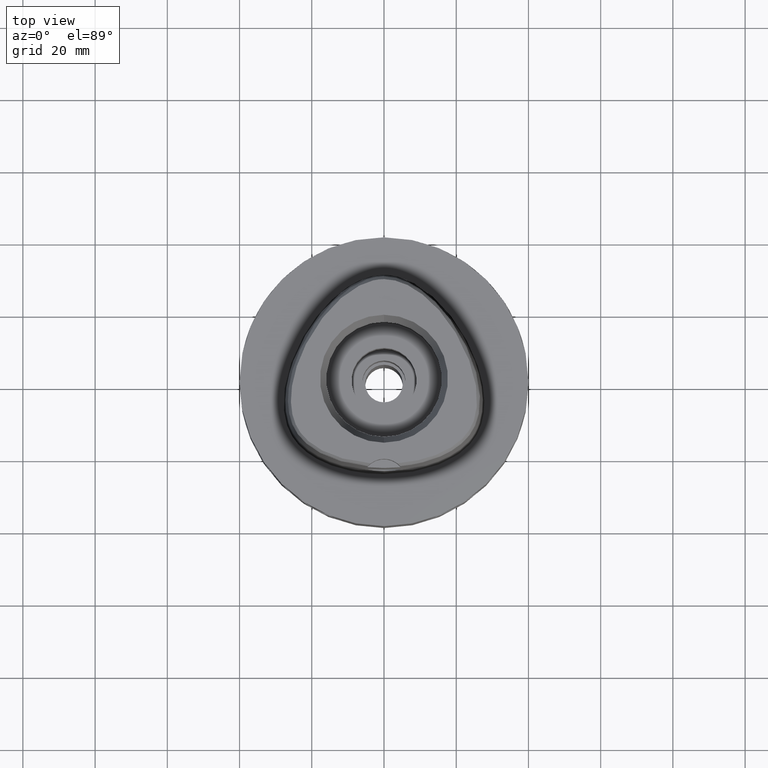
[diagram: clean part render]
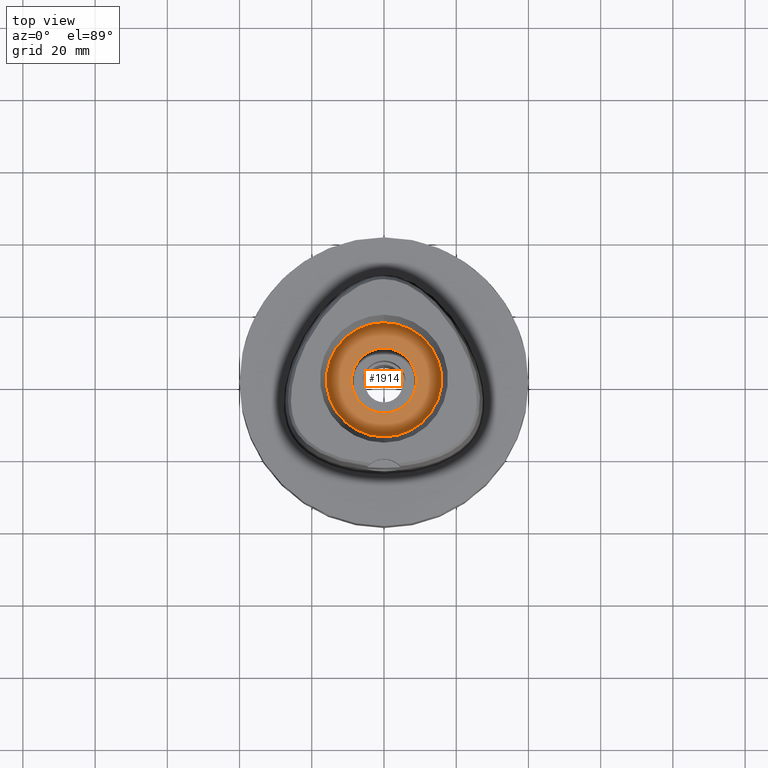
[diagram: same view with one face highlighted and labeled with its STEP entity id]
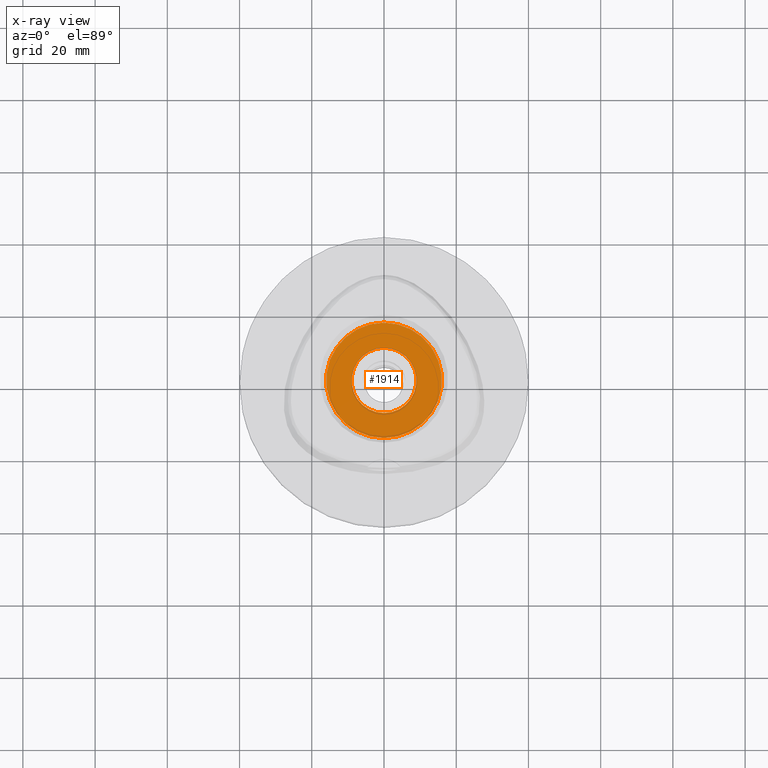
[diagram: x-ray of the same camera — body ghosted, the highlighted face saturated]
A machine part, top view. The second image highlights one B-rep face of the part: STEP entity #1914.
The next image is the same camera in x-ray: the body ghosted, the highlighted face saturated — about 0% of this face is hidden behind the body in this view.
In plain terms, the highlighted planar face has unit normal (0, 0, -1).
Its self-contained STEP definition (entity closure, byte-faithful):
#175 = CIRCLE ( 'NONE', #3483, 9.000000000000000000 ) ;
#293 = VERTEX_POINT ( 'NONE', #2223 ) ;
#331 = VERTEX_POINT ( 'NONE', #3070 ) ;
#435 = EDGE_CURVE ( 'NONE', #4090, #331, #2747, .T. ) ;
#525 = CARTESIAN_POINT ( 'NONE',  ( 0.0000000000000000000, 0.0000000000000000000, 20.00000000000000000 ) ) ;
#808 = CARTESIAN_POINT ( 'NONE',  ( 0.0000000000000000000, 0.0000000000000000000, 20.00000000000000000 ) ) ;
#1009 = CARTESIAN_POINT ( 'NONE',  ( 0.0000000000000000000, 0.0000000000000000000, 20.00000000000000000 ) ) ;
#1020 = EDGE_CURVE ( 'NONE', #293, #1944, #175, .T. ) ;
#1187 = DIRECTION ( 'NONE',  ( 0.0000000000000000000, 1.000000000000000000, 0.0000000000000000000 ) ) ;
#1318 = PLANE ( 'NONE',  #2204 ) ;
#1319 = DIRECTION ( 'NONE',  ( 0.0000000000000000000, 0.0000000000000000000, -1.000000000000000000 ) ) ;
#1383 = ORIENTED_EDGE ( 'NONE', *, *, #4477, .F. ) ;
#1421 = DIRECTION ( 'NONE',  ( 0.0000000000000000000, 0.0000000000000000000, -1.000000000000000000 ) ) ;
#1501 = DIRECTION ( 'NONE',  ( 0.0000000000000000000, 0.0000000000000000000, 1.000000000000000000 ) ) ;
#1579 = ORIENTED_EDGE ( 'NONE', *, *, #435, .F. ) ;
#1914 = ADVANCED_FACE ( 'NONE', ( #4511, #2906 ), #1318, .F. ) ;
#1944 = VERTEX_POINT ( 'NONE', #2545 ) ;
#2105 = CARTESIAN_POINT ( 'NONE',  ( 0.0000000000000000000, 0.0000000000000000000, 20.00000000000000000 ) ) ;
#2129 = AXIS2_PLACEMENT_3D ( 'NONE', #1009, #1421, #2932 ) ;
#2204 = AXIS2_PLACEMENT_3D ( 'NONE', #525, #3709, #3659 ) ;
#2223 = CARTESIAN_POINT ( 'NONE',  ( 0.0000000000000000000, 9.000000000000000000, 20.00000000000000000 ) ) ;
#2296 = DIRECTION ( 'NONE',  ( 0.0000000000000000000, -1.000000000000000000, 0.0000000000000000000 ) ) ;
#2320 = CARTESIAN_POINT ( 'NONE',  ( 0.0000000000000000000, 0.0000000000000000000, 20.00000000000000000 ) ) ;
#2545 = CARTESIAN_POINT ( 'NONE',  ( 0.0000000000000000000, -9.000000000000000000, 20.00000000000000000 ) ) ;
#2620 = AXIS2_PLACEMENT_3D ( 'NONE', #2320, #2679, #2296 ) ;
#2679 = DIRECTION ( 'NONE',  ( 0.0000000000000000000, 0.0000000000000000000, 1.000000000000000000 ) ) ;
#2747 = CIRCLE ( 'NONE', #3167, 16.00000000000000000 ) ;
#2756 = CARTESIAN_POINT ( 'NONE',  ( 0.0000000000000000000, 16.00000000000000000, 20.00000000000000000 ) ) ;
#2906 = FACE_BOUND ( 'NONE', #4811, .T. ) ;
#2932 = DIRECTION ( 'NONE',  ( 0.0000000000000000000, -1.000000000000000000, 0.0000000000000000000 ) ) ;
#3070 = CARTESIAN_POINT ( 'NONE',  ( 0.0000000000000000000, -16.00000000000000000, 20.00000000000000000 ) ) ;
#3167 = AXIS2_PLACEMENT_3D ( 'NONE', #2105, #1319, #4054 ) ;
#3256 = EDGE_LOOP ( 'NONE', ( #4633, #1579 ) ) ;
#3483 = AXIS2_PLACEMENT_3D ( 'NONE', #808, #1501, #1187 ) ;
#3659 = DIRECTION ( 'NONE',  ( 0.0000000000000000000, -1.000000000000000000, 0.0000000000000000000 ) ) ;
#3709 = DIRECTION ( 'NONE',  ( 0.0000000000000000000, 0.0000000000000000000, -1.000000000000000000 ) ) ;
#4054 = DIRECTION ( 'NONE',  ( 0.0000000000000000000, 1.000000000000000000, 0.0000000000000000000 ) ) ;
#4090 = VERTEX_POINT ( 'NONE', #2756 ) ;
#4405 = ORIENTED_EDGE ( 'NONE', *, *, #1020, .F. ) ;
#4443 = CIRCLE ( 'NONE', #2129, 16.00000000000000000 ) ;
#4477 = EDGE_CURVE ( 'NONE', #1944, #293, #4854, .T. ) ;
#4511 = FACE_OUTER_BOUND ( 'NONE', #3256, .T. ) ;
#4633 = ORIENTED_EDGE ( 'NONE', *, *, #4837, .F. ) ;
#4811 = EDGE_LOOP ( 'NONE', ( #1383, #4405 ) ) ;
#4837 = EDGE_CURVE ( 'NONE', #331, #4090, #4443, .T. ) ;
#4854 = CIRCLE ( 'NONE', #2620, 9.000000000000000000 ) ;